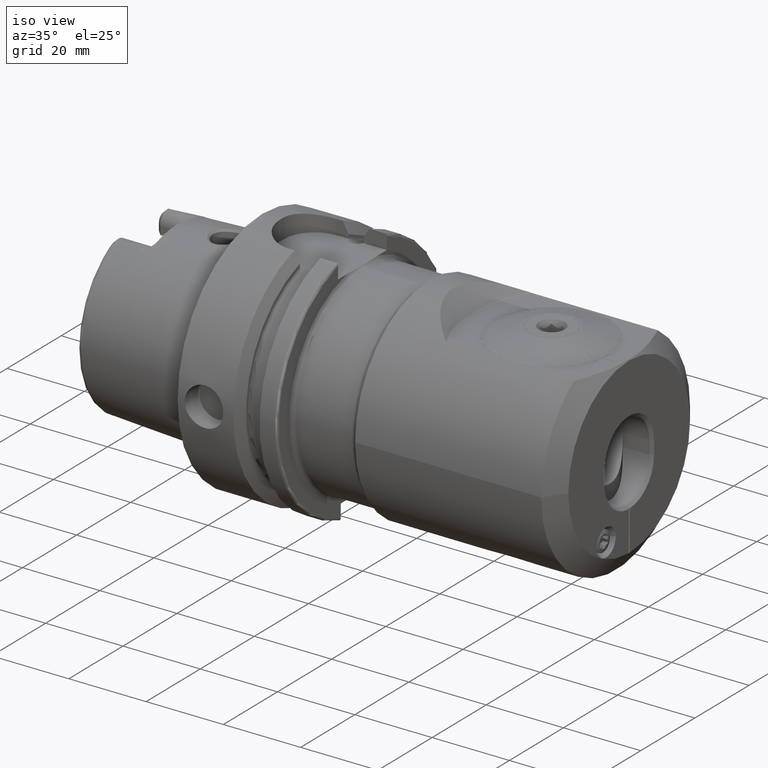
[diagram: clean part render]
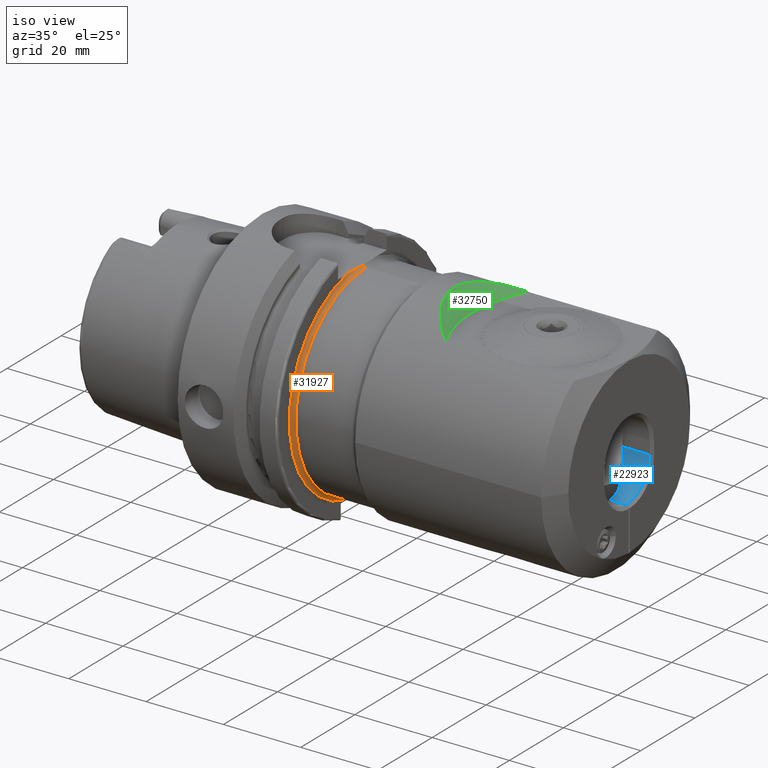
[diagram: same view with three faces highlighted in distinct colors, each labeled with its STEP entity id]
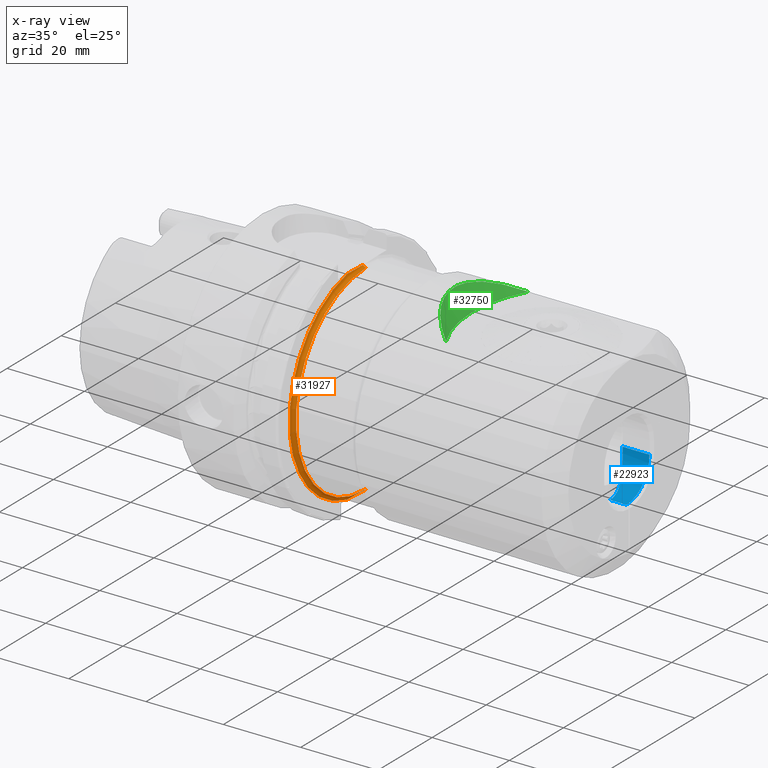
[diagram: x-ray of the same camera — body ghosted, the three highlighted faces saturated]
A machine part, iso view with three faces highlighted in distinct colors.
The next image is the same camera in x-ray (body ghosted, the three faces saturated) — at least one of them is partly hidden behind the body in this view.
Their STEP definitions:

[orange] entity #31927 — the highlighted toroidal blend (fillet) surface has major radius 27 mm and minor (blend) radius 1 mm.
#218 = CARTESIAN_POINT ( 'NONE',  ( 26.15000000000001300, -0.05694821714531941900, -26.40000000000000200 ) ) ;
#468 = CARTESIAN_POINT ( 'NONE',  ( 26.13149858046696400, -1.179642504831381200, -26.40000000000000600 ) ) ;
#971 = ORIENTED_EDGE ( 'NONE', *, *, #32065, .F. ) ;
#1689 = CARTESIAN_POINT ( 'NONE',  ( 25.94999999999999900, -5.660388679233999900, 26.39999999999999900 ) ) ;
#2074 = CARTESIAN_POINT ( 'NONE',  ( 25.95000000000001000, -4.716422382544953600, 26.39999999999999500 ) ) ;
#2112 = ORIENTED_EDGE ( 'NONE', *, *, #35590, .T. ) ;
#2522 = CARTESIAN_POINT ( 'NONE',  ( 25.94999999999999900, 0.0000000000000000000, 0.0000000000000000000 ) ) ;
#3143 = CARTESIAN_POINT ( 'NONE',  ( 25.95000000000001000, -4.716422382544953600, -26.39999999999999500 ) ) ;
#3542 = CARTESIAN_POINT ( 'NONE',  ( 26.10575454562997800, -1.887178407286468600, -26.39999999999999900 ) ) ;
#4329 = CARTESIAN_POINT ( 'NONE',  ( 26.95000000000000300, 0.0000000000000000000, 26.00000000000000700 ) ) ;
#4884 = CARTESIAN_POINT ( 'NONE',  ( 26.14704703551670000, -0.4719328135751275600, 26.39999999999999900 ) ) ;
#5262 = CARTESIAN_POINT ( 'NONE',  ( 26.14985155652797700, -0.1179932567922619400, 26.40000000000000200 ) ) ;
#6328 = CARTESIAN_POINT ( 'NONE',  ( 26.14881539231506800, -0.2949692754796977000, -26.39999999999999500 ) ) ;
#6370 = CIRCLE ( 'NONE', #24528, 1.000000000000000900 ) ;
#6747 = AXIS2_PLACEMENT_3D ( 'NONE', #28686, #16717, #25478 ) ;
#6783 = ORIENTED_EDGE ( 'NONE', *, *, #17578, .F. ) ;
#6884 = B_SPLINE_CURVE_WITH_KNOTS ( 'NONE', 3,
 ( #1689, #2074, #17485, #11282, #20542, #8330, #35741, #26404, #4884, #8197, #13932, #5262, #20044, #29473 ),
 .UNSPECIFIED., .F., .F.,
 ( 4, 2, 2, 2, 2, 2, 4 ),
 ( 0.03281378331465039500, 0.03554639186047939300, 0.03691269613339388800, 0.03759584826985114300, 0.03793742433807976300, 0.03810821237219407700, 0.03827900040630839000 ),
 .UNSPECIFIED. ) ;
#7495 = ORIENTED_EDGE ( 'NONE', *, *, #30973, .T. ) ;
#8197 = CARTESIAN_POINT ( 'NONE',  ( 26.14881539231506800, -0.2949692754796977000, 26.39999999999999500 ) ) ;
#8330 = CARTESIAN_POINT ( 'NONE',  ( 26.13149858046696400, -1.179642504831381200, 26.40000000000000600 ) ) ;
#8609 = B_SPLINE_CURVE_WITH_KNOTS ( 'NONE', 3,
 ( #31073, #3143, #27723, #33754, #3542, #468, #24383, #18425, #33874, #6328, #27596, #9403, #218, #21615 ),
 .UNSPECIFIED., .F., .F.,
 ( 4, 2, 2, 2, 2, 2, 4 ),
 ( 0.03281378331465039500, 0.03554639186047939300, 0.03691269613339388800, 0.03759584826985114300, 0.03793742433807976300, 0.03810821237219407700, 0.03827900040630839000 ),
 .UNSPECIFIED. ) ;
#8633 = DIRECTION ( 'NONE',  ( 0.0000000000000000000, 0.0000000000000000000, 1.000000000000000000 ) ) ;
#9282 = CARTESIAN_POINT ( 'NONE',  ( 26.95000000000000300, 0.0000000000000000000, 0.0000000000000000000 ) ) ;
#9403 = CARTESIAN_POINT ( 'NONE',  ( 26.14985155652797700, -0.1179932567922619400, -26.40000000000000200 ) ) ;
#10661 = AXIS2_PLACEMENT_3D ( 'NONE', #9282, #30560, #27225 ) ;
#11282 = CARTESIAN_POINT ( 'NONE',  ( 26.08156523703229700, -2.358749236662399000, 26.39999999999999500 ) ) ;
#11413 = VERTEX_POINT ( 'NONE', #27277 ) ;
#11668 = VERTEX_POINT ( 'NONE', #22453 ) ;
#11935 = CARTESIAN_POINT ( 'NONE',  ( 26.15000000000000600, 3.233067549749012400E-015, -26.39999999999999900 ) ) ;
#13932 = CARTESIAN_POINT ( 'NONE',  ( 26.14925925184030200, -0.2359789477461729800, 26.39999999999999900 ) ) ;
#14508 = DIRECTION ( 'NONE',  ( -0.0000000000000000000, 1.000000000000000000, 1.224646799147353200E-016 ) ) ;
#14621 = DIRECTION ( 'NONE',  ( -1.000000000000000000, -0.0000000000000000000, -0.0000000000000000000 ) ) ;
#16586 = EDGE_CURVE ( 'NONE', #31736, #16930, #6370, .T. ) ;
#16717 = DIRECTION ( 'NONE',  ( -1.000000000000000000, -0.0000000000000000000, -0.0000000000000000000 ) ) ;
#16930 = VERTEX_POINT ( 'NONE', #4329 ) ;
#17485 = CARTESIAN_POINT ( 'NONE',  ( 26.00584832799966900, -3.773408048782220400, 26.39999999999999900 ) ) ;
#17578 = EDGE_CURVE ( 'NONE', #23965, #11668, #37277, .T. ) ;
#18406 = DIRECTION ( 'NONE',  ( 0.0000000000000000000, 0.0000000000000000000, -1.000000000000000000 ) ) ;
#18425 = CARTESIAN_POINT ( 'NONE',  ( 26.14528448271013900, -0.5898985570594622600, -26.40000000000000600 ) ) ;
#20044 = CARTESIAN_POINT ( 'NONE',  ( 26.15000000000001300, -0.05694821714531941900, 26.40000000000000200 ) ) ;
#20542 = CARTESIAN_POINT ( 'NONE',  ( 26.10575454562997800, -1.887178407286468600, 26.39999999999999900 ) ) ;
#20901 = CARTESIAN_POINT ( 'NONE',  ( 25.94999999999999900, -5.660388679233999900, -26.39999999999999900 ) ) ;
#21615 = CARTESIAN_POINT ( 'NONE',  ( 26.15000000000000600, 3.233067549749012400E-015, -26.39999999999999900 ) ) ;
#22453 = CARTESIAN_POINT ( 'NONE',  ( 25.94999999999999900, -5.660388679233999900, 26.39999999999999900 ) ) ;
#23042 = FACE_OUTER_BOUND ( 'NONE', #27036, .T. ) ;
#23965 = VERTEX_POINT ( 'NONE', #20901 ) ;
#24157 = CARTESIAN_POINT ( 'NONE',  ( 26.15000000000000600, 0.0000000000000000000, 26.39999999999999900 ) ) ;
#24383 = CARTESIAN_POINT ( 'NONE',  ( 26.13834437068045700, -0.9437676206070130200, -26.39999999999999500 ) ) ;
#24528 = AXIS2_PLACEMENT_3D ( 'NONE', #30517, #33594, #18406 ) ;
#25478 = DIRECTION ( 'NONE',  ( 0.0000000000000000000, 0.0000000000000000000, 1.000000000000000000 ) ) ;
#25941 = VERTEX_POINT ( 'NONE', #11935 ) ;
#26026 = CIRCLE ( 'NONE', #29115, 1.000000000000000900 ) ;
#26404 = CARTESIAN_POINT ( 'NONE',  ( 26.14528448271013900, -0.5898985570594622600, 26.40000000000000600 ) ) ;
#27002 = DIRECTION ( 'NONE',  ( 0.0000000000000000000, -1.224646799147353500E-016, 1.000000000000000000 ) ) ;
#27036 = EDGE_LOOP ( 'NONE', ( #7495, #33979, #2112, #28574, #971, #6783 ) ) ;
#27225 = DIRECTION ( 'NONE',  ( 0.0000000000000000000, 0.0000000000000000000, 1.000000000000000000 ) ) ;
#27277 = CARTESIAN_POINT ( 'NONE',  ( 26.95000000000000300, 3.245314017740486600E-015, -26.00000000000000700 ) ) ;
#27596 = CARTESIAN_POINT ( 'NONE',  ( 26.14925925184030200, -0.2359789477461729800, -26.39999999999999900 ) ) ;
#27723 = CARTESIAN_POINT ( 'NONE',  ( 26.00584832799966900, -3.773408048782220400, -26.39999999999999900 ) ) ;
#28574 = ORIENTED_EDGE ( 'NONE', *, *, #16586, .F. ) ;
#28686 = CARTESIAN_POINT ( 'NONE',  ( 26.95000000000000300, 0.0000000000000000000, 0.0000000000000000000 ) ) ;
#29115 = AXIS2_PLACEMENT_3D ( 'NONE', #39005, #14508, #27002 ) ;
#29444 = EDGE_CURVE ( 'NONE', #25941, #11413, #26026, .T. ) ;
#29473 = CARTESIAN_POINT ( 'NONE',  ( 26.15000000000000600, 0.0000000000000000000, 26.39999999999999900 ) ) ;
#30517 = CARTESIAN_POINT ( 'NONE',  ( 26.95000000000000300, 0.0000000000000000000, 27.00000000000000700 ) ) ;
#30560 = DIRECTION ( 'NONE',  ( -1.000000000000000000, -0.0000000000000000000, -0.0000000000000000000 ) ) ;
#30973 = EDGE_CURVE ( 'NONE', #23965, #25941, #8609, .T. ) ;
#31073 = CARTESIAN_POINT ( 'NONE',  ( 25.94999999999999900, -5.660388679233999900, -26.39999999999999900 ) ) ;
#31736 = VERTEX_POINT ( 'NONE', #24157 ) ;
#31927 = ADVANCED_FACE ( 'NONE', ( #23042 ), #39264, .F. ) ;
#32065 = EDGE_CURVE ( 'NONE', #11668, #31736, #6884, .T. ) ;
#32320 = CIRCLE ( 'NONE', #10661, 26.00000000000000700 ) ;
#33594 = DIRECTION ( 'NONE',  ( 0.0000000000000000000, -1.000000000000000000, 0.0000000000000000000 ) ) ;
#33754 = CARTESIAN_POINT ( 'NONE',  ( 26.08156523703229700, -2.358749236662399000, -26.39999999999999500 ) ) ;
#33874 = CARTESIAN_POINT ( 'NONE',  ( 26.14704703551670000, -0.4719328135751275600, -26.39999999999999900 ) ) ;
#33979 = ORIENTED_EDGE ( 'NONE', *, *, #29444, .T. ) ;
#35590 = EDGE_CURVE ( 'NONE', #11413, #16930, #32320, .T. ) ;
#35741 = CARTESIAN_POINT ( 'NONE',  ( 26.13834437068045700, -0.9437676206070130200, 26.39999999999999500 ) ) ;
#37277 = CIRCLE ( 'NONE', #38847, 27.00000000000000700 ) ;
#38847 = AXIS2_PLACEMENT_3D ( 'NONE', #2522, #14621, #8633 ) ;
#39005 = CARTESIAN_POINT ( 'NONE',  ( 26.95000000000000300, 3.306546357697854500E-015, -27.00000000000000700 ) ) ;
#39264 = TOROIDAL_SURFACE ( 'NONE', #6747, 27.00000000000000700, 1.000000000000000900 ) ;

[blue] entity #22923 — the highlighted cylindrical surface (partial cylindrical patch) has radius 8.5 mm, axis along (1, 0, 0).
#1058 = EDGE_CURVE ( 'NONE', #37585, #37224, #2369, .T. ) ;
#1485 = CARTESIAN_POINT ( 'NONE',  ( 90.00000000000001400, -1.264993145309355300E-015, -11.50000000000002300 ) ) ;
#1799 = ORIENTED_EDGE ( 'NONE', *, *, #36543, .T. ) ;
#2369 = CIRCLE ( 'NONE', #25779, 8.500000000000000000 ) ;
#3136 = CARTESIAN_POINT ( 'NONE',  ( 89.69035275305586200, 3.043400950991757400, -10.94133131907388900 ) ) ;
#3852 = CYLINDRICAL_SURFACE ( 'NONE', #23145, 8.500000000000000000 ) ;
#4752 = CARTESIAN_POINT ( 'NONE',  ( 45.00000000000000000, 8.500000000000008900, -2.999999999999999600 ) ) ;
#5375 = CARTESIAN_POINT ( 'NONE',  ( 90.00000000000001400, -1.264993145309355300E-015, -11.50000000000002300 ) ) ;
#7256 = EDGE_CURVE ( 'NONE', #36736, #37224, #11626, .T. ) ;
#7629 = CARTESIAN_POINT ( 'NONE',  ( 89.87360046734197300, 1.963026132086370200, -11.27503147319386500 ) ) ;
#7880 = EDGE_CURVE ( 'NONE', #36097, #37585, #29666, .T. ) ;
#7891 = CARTESIAN_POINT ( 'NONE',  ( 87.35920709430826000, 8.500000000000008900, -2.999999999999999600 ) ) ;
#7900 = DIRECTION ( 'NONE',  ( 1.000000000000000000, -0.0000000000000000000, -0.0000000000000000000 ) ) ;
#7925 = CARTESIAN_POINT ( 'NONE',  ( 87.54906376862015800, 8.218218252248796300, -5.242203787261638900 ) ) ;
#10461 = CARTESIAN_POINT ( 'NONE',  ( 87.65982316634615800, 8.049370141787386900, -5.786479990945522000 ) ) ;
#11626 = LINE ( 'NONE', #4752, #35909 ) ;
#12169 = CARTESIAN_POINT ( 'NONE',  ( 88.07559099960100500, 7.358681250507658000, -7.289846010665958600 ) ) ;
#13688 = CARTESIAN_POINT ( 'NONE',  ( 94.29999999999999700, 8.500000000000008900, -2.999999999999999600 ) ) ;
#14087 = DIRECTION ( 'NONE',  ( 1.000000000000000000, 0.0000000000000000000, 0.0000000000000000000 ) ) ;
#14385 = CARTESIAN_POINT ( 'NONE',  ( 45.00000000000000000, 1.163414459189985600E-014, -2.999999999999999600 ) ) ;
#17496 = ORIENTED_EDGE ( 'NONE', *, *, #7880, .T. ) ;
#17595 = CARTESIAN_POINT ( 'NONE',  ( 88.82546892131327400, 5.822389867643122900, -9.198661980168166600 ) ) ;
#18904 = CARTESIAN_POINT ( 'NONE',  ( 89.83462152683596000, 2.238209853909537200, -11.20493109092195100 ) ) ;
#20058 = ORIENTED_EDGE ( 'NONE', *, *, #7256, .F. ) ;
#20645 = CARTESIAN_POINT ( 'NONE',  ( 87.92301772115205000, 7.619651912091719700, -6.807589152993676500 ) ) ;
#22223 = CARTESIAN_POINT ( 'NONE',  ( 89.74264346372415000, 2.780295469210810400, -11.03743955876504600 ) ) ;
#22923 = ADVANCED_FACE ( 'NONE', ( #35336 ), #3852, .F. ) ;
#23145 = AXIS2_PLACEMENT_3D ( 'NONE', #14385, #7900, #26096 ) ;
#24037 = CARTESIAN_POINT ( 'NONE',  ( 87.35920709430827500, 8.500000000000012400, -3.576177558512020100 ) ) ;
#24532 = ORIENTED_EDGE ( 'NONE', *, *, #1058, .T. ) ;
#25779 = AXIS2_PLACEMENT_3D ( 'NONE', #32580, #14087, #26433 ) ;
#26096 = DIRECTION ( 'NONE',  ( 0.0000000000000000000, 0.0000000000000000000, -1.000000000000000000 ) ) ;
#26433 = DIRECTION ( 'NONE',  ( 0.0000000000000000000, 0.0000000000000000000, -1.000000000000000000 ) ) ;
#27133 = CARTESIAN_POINT ( 'NONE',  ( 87.39958386814974700, 8.442063290879263000, -4.139366691629397200 ) ) ;
#28225 = CARTESIAN_POINT ( 'NONE',  ( 89.15245198988348800, 4.976520018180885100, -9.896350892726717400 ) ) ;
#29666 = LINE ( 'NONE', #39201, #36389 ) ;
#31215 = CARTESIAN_POINT ( 'NONE',  ( 94.29999999999999700, 1.163414459189985600E-014, -11.50000000000000000 ) ) ;
#31975 = CARTESIAN_POINT ( 'NONE',  ( 89.96747639947288600, 1.133357869651176600, -11.44298346852056600 ) ) ;
#32364 = CARTESIAN_POINT ( 'NONE',  ( 89.38048943247017100, 4.293264370134054700, -10.35659632955403000 ) ) ;
#32580 = CARTESIAN_POINT ( 'NONE',  ( 94.29999999999999700, 1.163414459189985600E-014, -2.999999999999999600 ) ) ;
#33721 = CARTESIAN_POINT ( 'NONE',  ( 88.90879096557829100, 5.621108475723542800, -9.381864195442398500 ) ) ;
#34100 = CARTESIAN_POINT ( 'NONE',  ( 89.99999999999998600, 0.5713435008706715400, -11.49999999999999800 ) ) ;
#34290 = CARTESIAN_POINT ( 'NONE',  ( 88.57369319244213600, 6.397664556506561500, -8.622670600638263800 ) ) ;
#35336 = FACE_OUTER_BOUND ( 'NONE', #35553, .T. ) ;
#35502 = DIRECTION ( 'NONE',  ( 1.000000000000000000, -0.0000000000000000000, -0.0000000000000000000 ) ) ;
#35553 = EDGE_LOOP ( 'NONE', ( #1799, #17496, #24532, #20058 ) ) ;
#35909 = VECTOR ( 'NONE', #35502, 1000.000000000000000 ) ;
#36097 = VERTEX_POINT ( 'NONE', #5375 ) ;
#36221 = CARTESIAN_POINT ( 'NONE',  ( 87.35920709430826000, 8.500000000000008900, -2.999999999999999600 ) ) ;
#36389 = VECTOR ( 'NONE', #36686, 1000.000000000000000 ) ;
#36543 = EDGE_CURVE ( 'NONE', #36736, #36097, #38195, .T. ) ;
#36686 = DIRECTION ( 'NONE',  ( 1.000000000000000000, -0.0000000000000000000, -0.0000000000000000000 ) ) ;
#36736 = VERTEX_POINT ( 'NONE', #7891 ) ;
#36923 = CARTESIAN_POINT ( 'NONE',  ( 89.07220577881142300, 5.198495084040198200, -9.730579467336420800 ) ) ;
#37224 = VERTEX_POINT ( 'NONE', #13688 ) ;
#37304 = CARTESIAN_POINT ( 'NONE',  ( 89.51733761743024300, 3.810763956531650500, -10.61814990262101300 ) ) ;
#37585 = VERTEX_POINT ( 'NONE', #31215 ) ;
#38195 = B_SPLINE_CURVE_WITH_KNOTS ( 'NONE', 3,
 ( #36221, #24037, #27133, #7925, #10461, #20645, #12169, #38206, #34290, #17595, #33721, #36923, #28225, #32364, #37304, #3136, #22223, #18904, #7629, #31975, #34100, #1485 ),
 .UNSPECIFIED., .F., .F.,
 ( 4, 2, 2, 2, 2, 2, 2, 2, 2, 2, 4 ),
 ( 0.0000000000000000000, 0.001700004370648651100, 0.003400008741297302100, 0.005100013111945953000, 0.006800017482594603400, 0.007650019667918920800, 0.008500021853243238200, 0.01020002622389187100, 0.01105002840921618700, 0.01190003059454050300, 0.01360003496518913000 ),
 .UNSPECIFIED. ) ;
#38206 = CARTESIAN_POINT ( 'NONE',  ( 88.40299602960530500, 6.743957826514329000, -8.203076145511966300 ) ) ;
#39201 = CARTESIAN_POINT ( 'NONE',  ( 45.00000000000000000, 1.163414459189985600E-014, -11.50000000000000000 ) ) ;

[green] entity #32750 — the highlighted conical surface has half-angle 45 deg.
#7 = CARTESIAN_POINT ( 'NONE',  ( 51.54191573633532600, 7.483421950105198800, 26.47192795895030700 ) ) ;
#2804 = DIRECTION ( 'NONE',  ( -1.000000000000000000, 0.0000000000000000000, 0.0000000000000000000 ) ) ;
#3335 = CARTESIAN_POINT ( 'NONE',  ( 49.83702382644431600, -1.951448851551379900, 27.43340646797559800 ) ) ;
#3468 = CARTESIAN_POINT ( 'NONE',  ( 50.91846700291458200, -6.081372320809554900, 26.82169757087898900 ) ) ;
#3778 = AXIS2_PLACEMENT_3D ( 'NONE', #22029, #21649, #3832 ) ;
#3832 = DIRECTION ( 'NONE',  ( -1.000000000000000000, 0.0000000000000000000, 0.0000000000000000000 ) ) ;
#3993 = CARTESIAN_POINT ( 'NONE',  ( 57.08531140898418200, -14.36695725285276900, 23.47266949514144900 ) ) ;
#4720 = DIRECTION ( 'NONE',  ( 0.0000000000000000000, 0.0000000000000000000, 1.000000000000000000 ) ) ;
#5984 = CARTESIAN_POINT ( 'NONE',  ( 57.08622118662658800, 14.36765288510574300, 23.47220593340670200 ) ) ;
#6390 = CARTESIAN_POINT ( 'NONE',  ( 50.18244199795142200, -3.867795628032245400, 27.23718050439617500 ) ) ;
#6521 = CARTESIAN_POINT ( 'NONE',  ( 50.52114344748506600, 4.992480743054563200, 27.04566416981648700 ) ) ;
#6956 = CARTESIAN_POINT ( 'NONE',  ( 58.24000583690037300, -15.24985725933589200, 22.88431457505075200 ) ) ;
#7051 = CARTESIAN_POINT ( 'NONE',  ( 53.11347103592794400, -10.04558113228586400, 25.60168469629306600 ) ) ;
#8732 = FACE_OUTER_BOUND ( 'NONE', #11582, .T. ) ;
#9043 = CARTESIAN_POINT ( 'NONE',  ( 54.02421716508415300, 11.24469137924714500, 25.10411643594212400 ) ) ;
#9590 = CARTESIAN_POINT ( 'NONE',  ( 51.53874949842509100, -7.477084260348674700, 26.47369833494538900 ) ) ;
#10425 = CIRCLE ( 'NONE', #22166, 31.73431457505075000 ) ;
#11402 = VERTEX_POINT ( 'NONE', #36501 ) ;
#11483 = EDGE_CURVE ( 'NONE', #33247, #11402, #10425, .T. ) ;
#11582 = EDGE_LOOP ( 'NONE', ( #15095, #31197, #17978 ) ) ;
#12520 = CARTESIAN_POINT ( 'NONE',  ( 52.68392545300244500, 9.440724033938533200, 25.83767674053330100 ) ) ;
#12652 = CARTESIAN_POINT ( 'NONE',  ( 52.48194050515456900, -9.109553024298737300, 25.94959215507799400 ) ) ;
#13065 = VERTEX_POINT ( 'NONE', #6956 ) ;
#13292 = CARTESIAN_POINT ( 'NONE',  ( 53.33565577984435200, -10.35027246874713000, 25.47989162547768800 ) ) ;
#14363 = CARTESIAN_POINT ( 'NONE',  ( 54.33568542494924700, 0.0000000000000000000, 22.88431457505075200 ) ) ;
#14401 = DIRECTION ( 'NONE',  ( 1.000000000000000000, 0.0000000000000000000, 0.0000000000000000000 ) ) ;
#15095 = ORIENTED_EDGE ( 'NONE', *, *, #22134, .T. ) ;
#16698 = AXIS2_PLACEMENT_3D ( 'NONE', #32641, #4720, #14401 ) ;
#17959 = DIRECTION ( 'NONE',  ( -0.0000000000000000000, -0.0000000000000000000, -1.000000000000000000 ) ) ;
#17978 = ORIENTED_EDGE ( 'NONE', *, *, #24489, .T. ) ;
#18220 = CARTESIAN_POINT ( 'NONE',  ( 54.50302037256482600, 11.80407224435673400, 24.84491996666577400 ) ) ;
#18355 = CARTESIAN_POINT ( 'NONE',  ( 50.64717359222122200, 5.363067101345043500, 26.97451079371053600 ) ) ;
#19001 = CARTESIAN_POINT ( 'NONE',  ( 52.68673636797219500, -9.425327657007128900, 25.83646953691238200 ) ) ;
#19136 = CARTESIAN_POINT ( 'NONE',  ( 58.24000583690037300, -15.24985725933589200, 22.88431457505075200 ) ) ;
#19701 = CONICAL_SURFACE ( 'NONE', #16698, 31.73431457505075700, 0.7853981633974531600 ) ;
#21536 = CARTESIAN_POINT ( 'NONE',  ( 49.95973892047715700, 3.129796781157169400, 27.36310292727990400 ) ) ;
#21649 = DIRECTION ( 'NONE',  ( -0.0000000000000000000, -0.0000000000000000000, -1.000000000000000000 ) ) ;
#21669 = CARTESIAN_POINT ( 'NONE',  ( 50.64556436449112900, -5.358482721040172000, 26.97541867731283100 ) ) ;
#22029 = CARTESIAN_POINT ( 'NONE',  ( 86.06999999999999300, 0.0000000000000000000, 22.88431457505075200 ) ) ;
#22134 = EDGE_CURVE ( 'NONE', #13065, #33247, #29604, .T. ) ;
#22166 = AXIS2_PLACEMENT_3D ( 'NONE', #27005, #17959, #2804 ) ;
#22845 = B_SPLINE_CURVE_WITH_KNOTS ( 'NONE', 3,
 ( #33928, #5984, #30465, #18220, #9043, #30732, #12520, #24312, #7, #30334, #33537, #18355, #6521, #21536, #24440, #30599, #33674, #36748, #3335, #24573, #6390, #36875, #21669, #3468, #27778, #9590, #30865, #12652, #19001, #7051, #13292, #25221, #37271, #37406, #3993, #19136 ),
 .UNSPECIFIED., .F., .F.,
 ( 4, 2, 2, 2, 2, 2, 2, 2, 2, 2, 2, 2, 2, 2, 2, 2, 2, 4 ),
 ( 0.001212661578236256700, 0.005880175842184023500, 0.008213932974157907300, 0.01054769010613178900, 0.01288144723810567100, 0.01404832580409261600, 0.01521520437007955900, 0.01988271863402734200, 0.02104959720001428600, 0.02221647576600123400, 0.02455023289797512300, 0.02571711146396207100, 0.02688399002994901500, 0.02921774716192291800, 0.03038462572790987000, 0.03155150429389681800, 0.03388526142587070700, 0.03855277568981847800 ),
 .UNSPECIFIED. ) ;
#24312 = CARTESIAN_POINT ( 'NONE',  ( 51.89851492661184600, 8.151601466869067300, 26.27287961298910800 ) ) ;
#24440 = CARTESIAN_POINT ( 'NONE',  ( 49.72156686391325300, 1.596781736388789300, 27.49910797965445000 ) ) ;
#24489 = EDGE_CURVE ( 'NONE', #11402, #13065, #22845, .T. ) ;
#24573 = CARTESIAN_POINT ( 'NONE',  ( 50.01074666177485300, -3.108919959831072600, 27.33467374806057700 ) ) ;
#25221 = CARTESIAN_POINT ( 'NONE',  ( 54.01867085922968700, -11.23807913884587800, 25.10712343066422400 ) ) ;
#27005 = CARTESIAN_POINT ( 'NONE',  ( 86.06999999999999300, 0.0000000000000000000, 22.88431457505075200 ) ) ;
#27778 = CARTESIAN_POINT ( 'NONE',  ( 51.06591118612717400, -6.435414660505587700, 26.73880721514819200 ) ) ;
#29604 = CIRCLE ( 'NONE', #3778, 31.73431457505075000 ) ;
#30334 = CARTESIAN_POINT ( 'NONE',  ( 51.06817296570386600, 6.440712315514693000, 26.73753669199110000 ) ) ;
#30465 = CARTESIAN_POINT ( 'NONE',  ( 56.00271296492383000, 13.40417919837494100, 24.04168585640232800 ) ) ;
#30599 = CARTESIAN_POINT ( 'NONE',  ( 49.71961779743355000, -0.3798990367010802200, 27.50021758907212500 ) ) ;
#30732 = CARTESIAN_POINT ( 'NONE',  ( 53.11531514454296900, 10.06445471255326900, 25.60012690559987500 ) ) ;
#30865 = CARTESIAN_POINT ( 'NONE',  ( 51.89452735452955800, -8.144334242050538500, 26.27510184610794400 ) ) ;
#31197 = ORIENTED_EDGE ( 'NONE', *, *, #11483, .T. ) ;
#32641 = CARTESIAN_POINT ( 'NONE',  ( 86.06999999999999300, 0.0000000000000000000, 22.88431457505075200 ) ) ;
#32750 = ADVANCED_FACE ( 'NONE', ( #8732 ), #19701, .F. ) ;
#33247 = VERTEX_POINT ( 'NONE', #14363 ) ;
#33537 = CARTESIAN_POINT ( 'NONE',  ( 50.92048162076091000, 6.086382819953317200, 26.82056422714691000 ) ) ;
#33674 = CARTESIAN_POINT ( 'NONE',  ( 49.73439102189265500, -0.7777255854093639800, 27.49180533860727800 ) ) ;
#33928 = CARTESIAN_POINT ( 'NONE',  ( 58.24000583690038000, 15.24985725933588800, 22.88431457505075200 ) ) ;
#36501 = CARTESIAN_POINT ( 'NONE',  ( 58.24000583690038000, 15.24985725933588800, 22.88431457505075200 ) ) ;
#36748 = CARTESIAN_POINT ( 'NONE',  ( 49.79311551361524800, -1.562425970883725400, 27.45838747901238000 ) ) ;
#36875 = CARTESIAN_POINT ( 'NONE',  ( 50.51964919653607200, -4.987971919303878300, 27.04650804345279300 ) ) ;
#37271 = CARTESIAN_POINT ( 'NONE',  ( 54.49834579059139400, -11.79883145962989000, 24.84743795609393800 ) ) ;
#37406 = CARTESIAN_POINT ( 'NONE',  ( 56.00045731417247200, -13.40227601132251300, 24.04286557162203400 ) ) ;